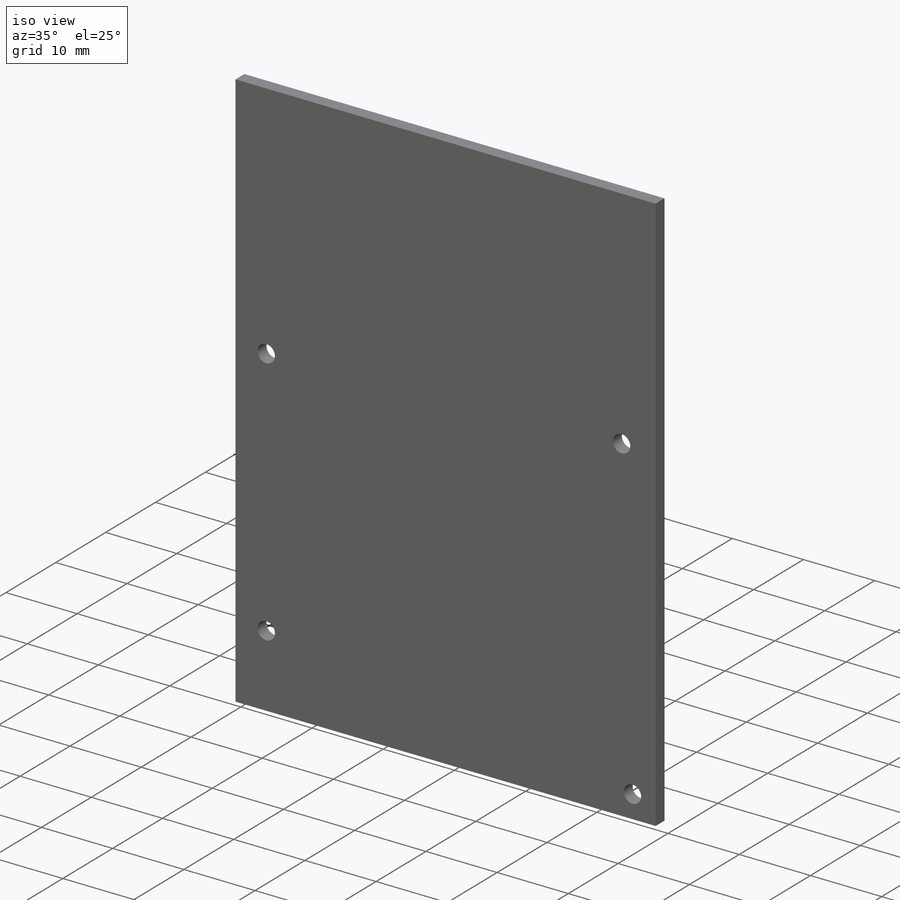
[diagram: iso view]
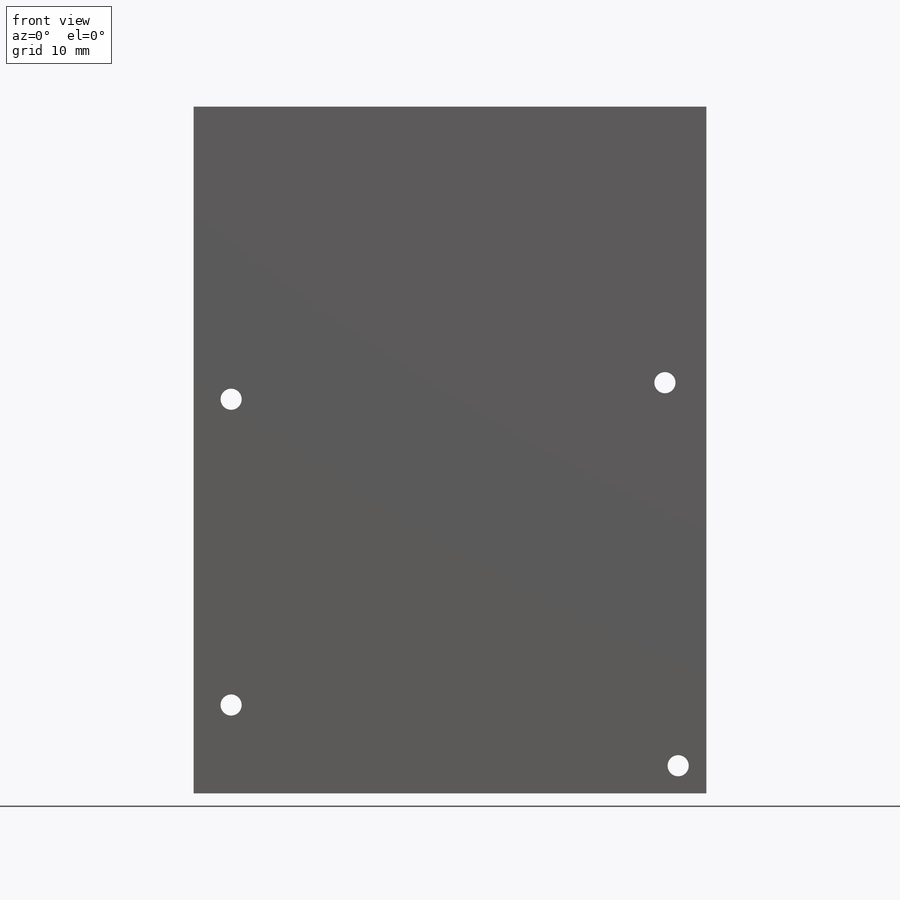
[diagram: front view]
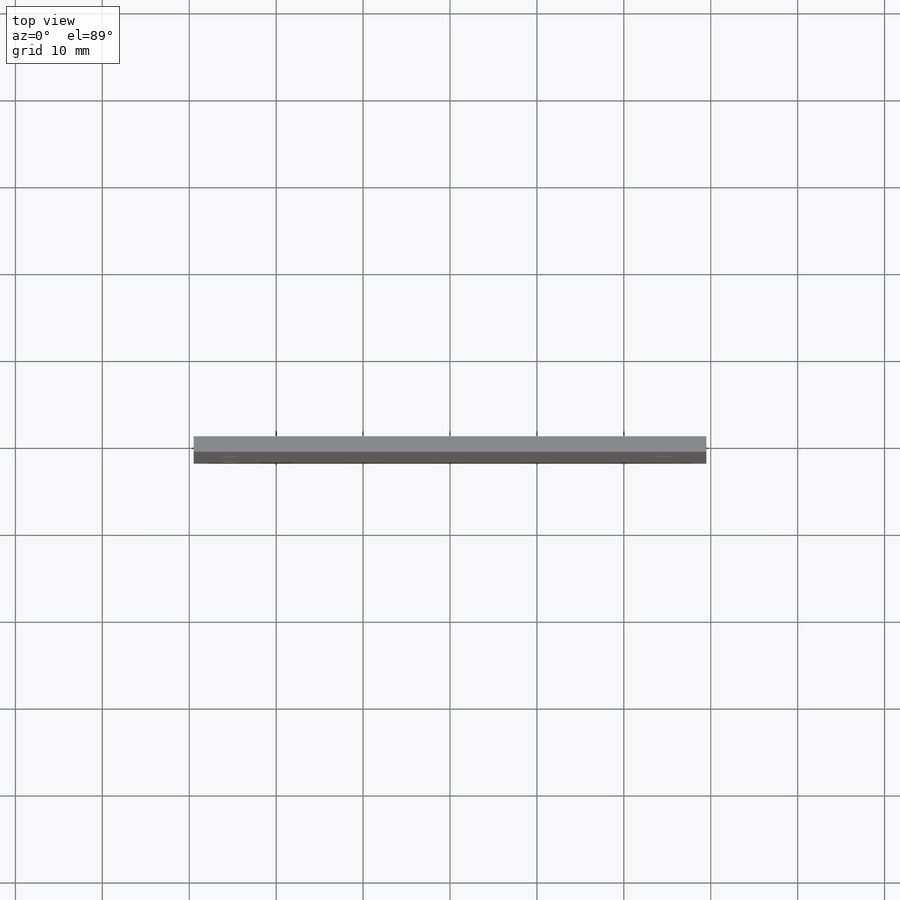
[diagram: top view]
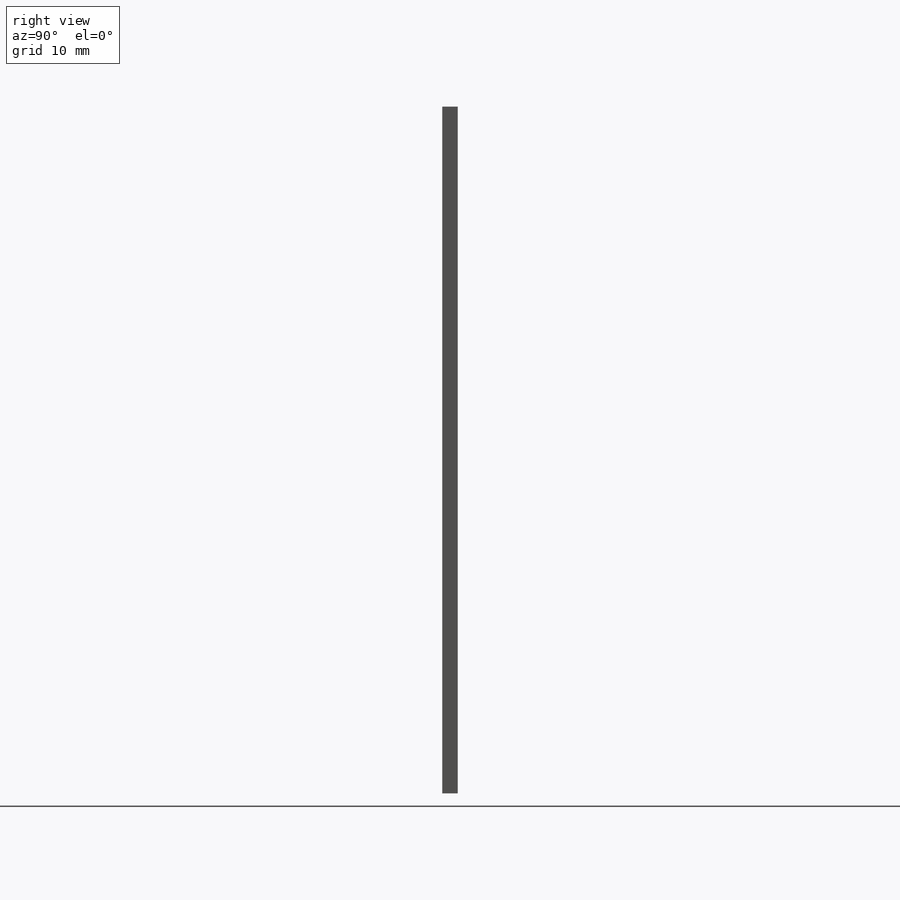
[diagram: right view]
SOLIDWORKS PART (.sldprt)
format: sldprt  version: not decoded by parser v0  size: 151,552 bytes
history: native  units: mm
features: sketch x3, material x1, extrude x1, hole x1 (+11 scaffold rows collapsed)
feature tree (17):
  scaffold x11  (default folders/planes/origin — collapsed)
  material  "Rubber"
  sketch  "Sketch1"  dims[D1=59.0mm D2=79.0mm D3=38.5mm D4=29.5mm]
  extrude  "Extrude1"  Depth=1.778mm
  hole  "#2 Clearance Hole1"  Diameter=2.4384mm Depth=6.35mm
  sketch  "3DSketch1"  dims[c1.D1=10.16mm c1.D2=~8.372093mm c1.D9=4.445mm c1.D3=45.339mm c1.D4=~7.963824mm c2.D9=4.445mm c2.D5=0.0mm c3.D5=3.175mm c3.D6=~50.423773mm c3.D9=55.753mm c3.D7=47.244mm c3.D8=~48.892765mm c4.D9=54.229mm c4.D4=4.191mm c4.D2=4.445mm c4.D8=54.229mm c4.D6=55.753mm c5.D9=~3.701931mm]
  sketch  "Sketch2"  dims[hole-wizard template sketch: 47 standard entries collapsed; hole parameters kept: c15.Hole Depth=6.35mm c15.D3=~14.816244mm c15.Drill Angle=118.0deg]
decode coverage: 5 of 5 modeling features carry decoded parameters
note: ~ marks probable driven/reference dimensions
note: suppression state not decoded; provenance and decode notes live in map.json
